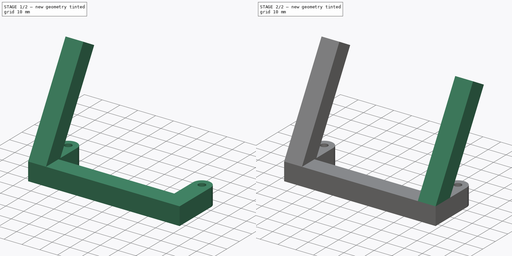
[diagram: build sequence overview — one tinted view per stage of 2, left to right]
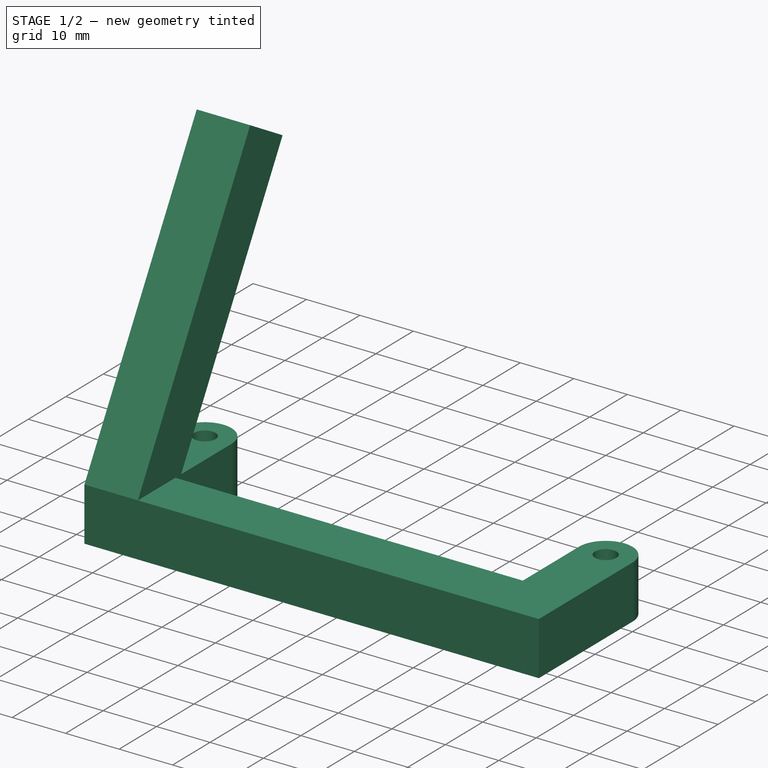
[diagram: stage 1 of 2 — iso view after this stage's code; geometry added in this stage tinted green]
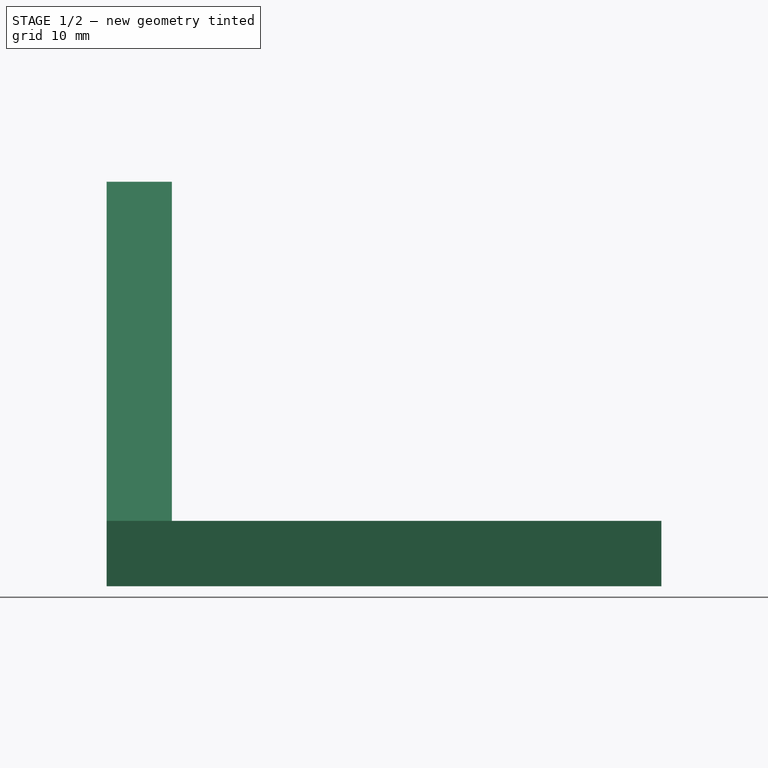
[diagram: stage 1 of 2 — front view after this stage's code; geometry added in this stage tinted green]
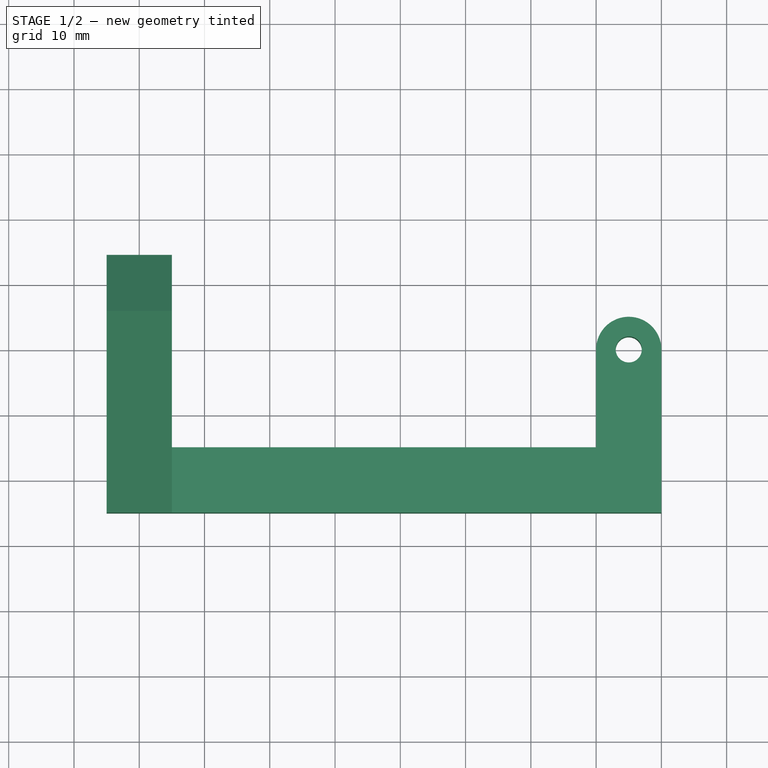
[diagram: stage 1 of 2 — top view after this stage's code; geometry added in this stage tinted green]
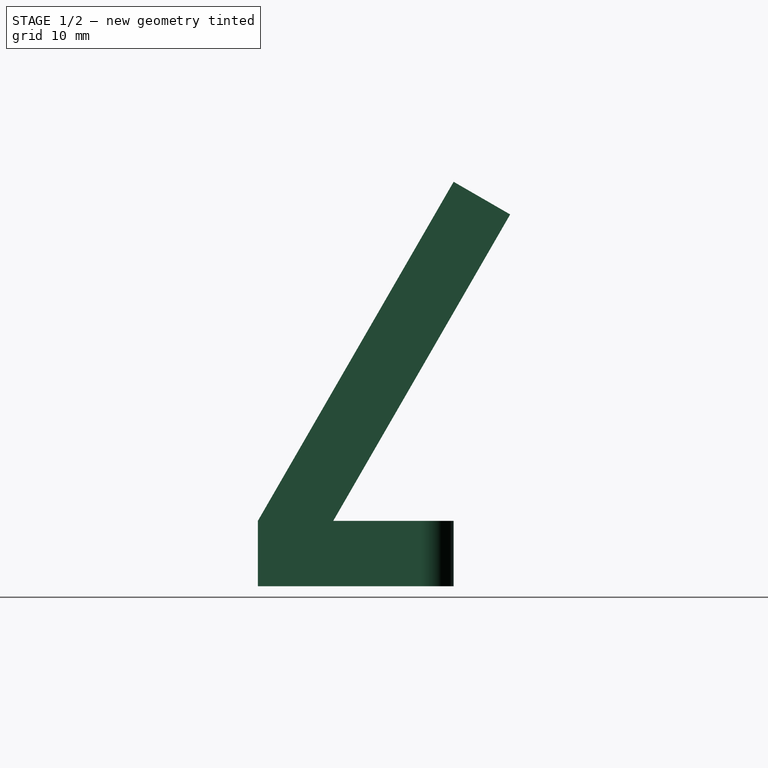
[diagram: stage 1 of 2 — right view after this stage's code; geometry added in this stage tinted green]
FCSTD DOCUMENT  (FreeCAD 0.20R)
Label: small_round_screen_holder
License: All rights reserved
LicenseURL: http://en.wikipedia.org/wiki/All_rights_reserved
objects: Sketcher::SketchObject×3, PartDesign::Pad×3, PartDesign::Body×1
note: 10 computed .brp shape members not serialized (recipe doc carries the construction recipe); baked Part::Feature solids carry a one-line shape summary decoded from their .brp

FEATURE [Sketcher::SketchObject] Sketch
  FullyConstrained = true
  MapMode = 5
  Support = -> [XY_Plane]
  sketch-geometry (12):
    g0: Circle CenterX=0 CenterY=0 CenterZ=0 NormalX=0 NormalY=0 NormalZ=1 AngleXU=0 Radius=2
    g1: LineSegment StartX=0 StartY=0 StartZ=0 EndX=75 EndY=0 EndZ=0
    g2: Circle CenterX=75 CenterY=0 CenterZ=0 NormalX=0 NormalY=0 NormalZ=1 AngleXU=0 Radius=2
    g3: LineSegment StartX=-5 StartY=-25 StartZ=0 EndX=-5 EndY=0 EndZ=0
    g4: LineSegment StartX=5 StartY=0 StartZ=0 EndX=5 EndY=-15 EndZ=0
    g5: ArcOfCircle CenterX=0 CenterY=0 CenterZ=0 NormalX=0 NormalY=0 NormalZ=1 AngleXU=0 Radius=5 StartAngle=0 EndAngle=3.14159
    g6: LineSegment StartX=5 StartY=-15 StartZ=0 EndX=70 EndY=-15 EndZ=0
    g7: LineSegment StartX=70 StartY=-15 StartZ=0 EndX=70 EndY=0 EndZ=0
    g8: LineSegment StartX=80 StartY=0 StartZ=0 EndX=80 EndY=-25 EndZ=0
    g9: ArcOfCircle CenterX=75 CenterY=0 CenterZ=0 NormalX=0 NormalY=0 NormalZ=1 AngleXU=0 Radius=5 StartAngle=0 EndAngle=3.14159
    g10: LineSegment StartX=-5 StartY=-25 StartZ=0 EndX=80 EndY=-25 EndZ=0
    g11: LineSegment StartX=5 StartY=-15 StartZ=0 EndX=5 EndY=-25 EndZ=0
  constraints (34):
    c: Coincident(g0,g-1)
    c: Diameter(g0) = 4
    c: Coincident(g1,g0)
    c: PointOnObject(g1,g-1)
    c: Distance(g1) = 75
    c: Coincident(g2,g1)
    c: Equal(g2,g0)
    c: PointOnObject(g3,g-1)
    c: Vertical(g3)
    c: PointOnObject(g4,g1)
    c: Vertical(g4)
    c: Coincident(g5,g0)
    c: Coincident(g5,g3)
    c: Coincident(g5,g4)
    c: Radius(g5) = 5
    c: Coincident(g6,g4)
    c: Horizontal(g6)
    c: Coincident(g7,g6)
    c: PointOnObject(g7,g1)
    c: Vertical(g7)
    c: PointOnObject(g8,g-1)
    c: Vertical(g8)
    c: Coincident(g9,g2)
    c: Coincident(g9,g7)
    c: Coincident(g9,g8)
    c: Equal(g9,g5)
    c: Equal(g3,g8)
    c: Coincident(g10,g3)
    c: Coincident(g10,g8)
    c: Distance(g3) = 25
    c: Coincident(g11,g4)
    c: PointOnObject(g11,g10)
    c: Vertical(g11)
    c: Distance(g11) = 10
FEATURE [PartDesign::Pad] Pad
  Direction = (0,0,1)
  Length = 10
  Length2 = 10
  Profile = -> Sketch
  ReferenceAxis = -> Sketch [N_Axis]
  Type = 0
FEATURE [Sketcher::SketchObject] Sketch001
  ExternalGeometry = -> [Pad]
  FullyConstrained = true
  MapMode = 5
  Placement = pos=(-5,0,0) rot=(0.57735,-0.57735,-0.57735;2.0944rad)
  Support = -> [Pad]
  sketch-geometry (4):
    g0: LineSegment StartX=25 StartY=10 StartZ=0 EndX=-5 EndY=61.9615 EndZ=0
    g1: LineSegment StartX=-5 StartY=61.9615 StartZ=0 EndX=-13.6603 EndY=56.9615 EndZ=0
    g2: LineSegment StartX=-13.6603 StartY=56.9615 StartZ=0 EndX=13.453 EndY=10 EndZ=0
    g3: LineSegment StartX=13.453 StartY=10 StartZ=0 EndX=25 EndY=10 EndZ=0
  constraints (11):
    c: Coincident(g0,g-4)
    c: Coincident(g1,g0)
    c: Coincident(g2,g1)
    c: PointOnObject(g2,g-4)
    c: Perpendicular(g0,g1)
    c: Parallel(g2,g0)
    c: Equal(g1,g-3)
    c: Angle(g2,g-4) = 1.0472
    c: Distance(g0) = 60
    c: Coincident(g3,g2)
    c: Coincident(g3,g0)
FEATURE [Sketcher::SketchObject] Sketch002
  ExternalGeometry = -> [Sketch001]
  FullyConstrained = true
  MapMode = 5
  Placement = pos=(80,0,0) rot=(0.57735,0.57735,0.57735;2.0944rad)
  Support = -> [Pad]
  sketch-geometry (4):
    g0: LineSegment StartX=-25 StartY=10 StartZ=0 EndX=5 EndY=61.9615 EndZ=0
    g1: LineSegment StartX=5 StartY=61.9615 StartZ=0 EndX=13.6603 EndY=56.9615 EndZ=0
    g2: LineSegment StartX=13.6603 StartY=56.9615 StartZ=0 EndX=-13.453 EndY=10 EndZ=0
    g3: LineSegment StartX=-13.453 StartY=10 StartZ=0 EndX=-25 EndY=10 EndZ=0
  constraints (8):
    c: Coincident(g0,g-3)
    c: Coincident(g0,g-5)
    c: Coincident(g1,g0)
    c: Coincident(g1,g-5)
    c: Coincident(g2,g1)
    c: Coincident(g2,g-4)
    c: Coincident(g3,g2)
    c: Coincident(g3,g0)
FEATURE [PartDesign::Pad] Pad001
  BaseFeature = -> Pad
  Direction = (-1,0,0)
  Length = 10
  Length2 = 10
  Profile = -> Sketch001
  ReferenceAxis = -> Sketch001 [N_Axis]
  Reversed = true
  Type = 0
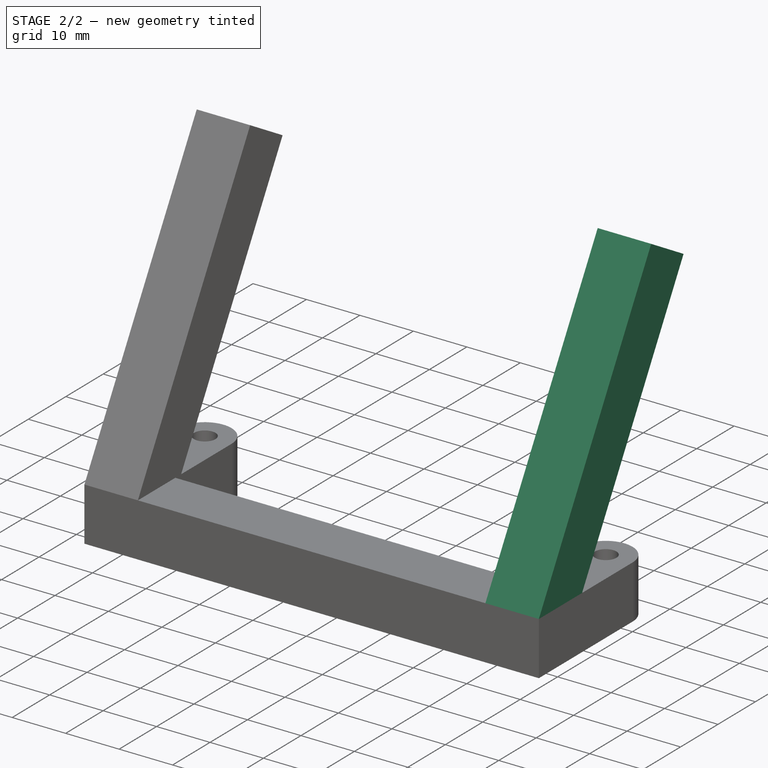
[diagram: stage 2 of 2 — iso view after this stage's code; geometry added in this stage tinted green]
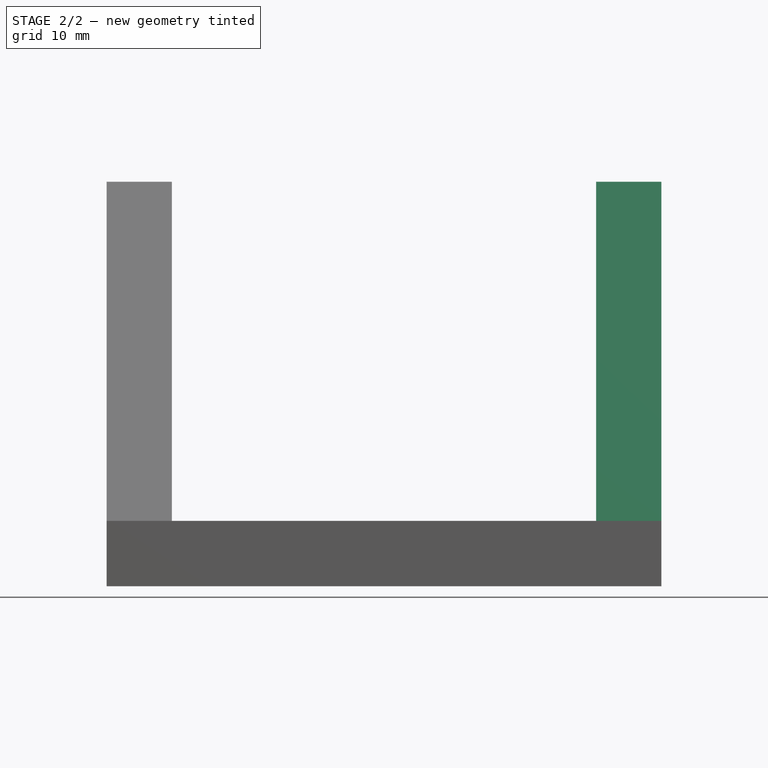
[diagram: stage 2 of 2 — front view after this stage's code; geometry added in this stage tinted green]
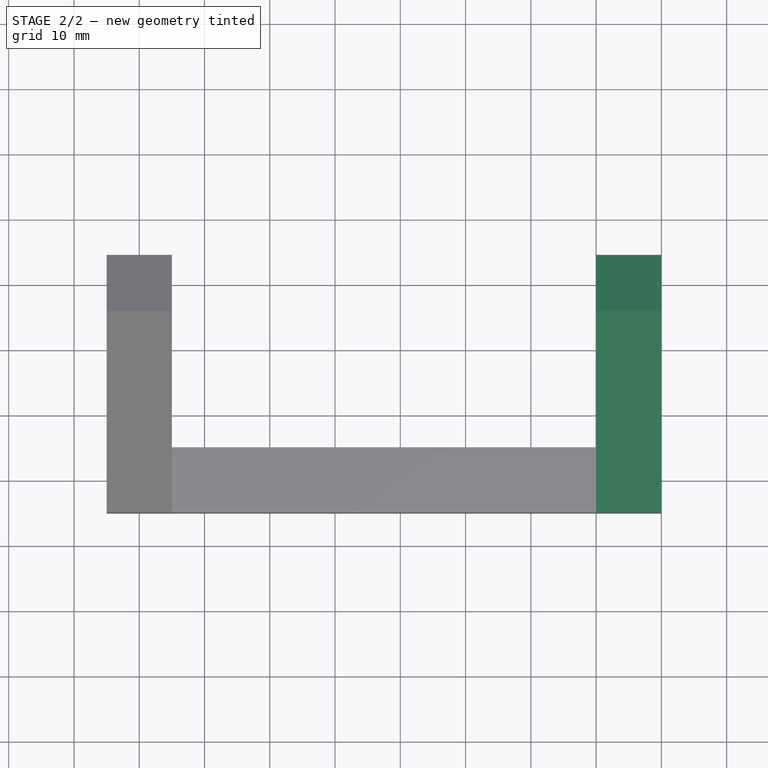
[diagram: stage 2 of 2 — top view after this stage's code; geometry added in this stage tinted green]
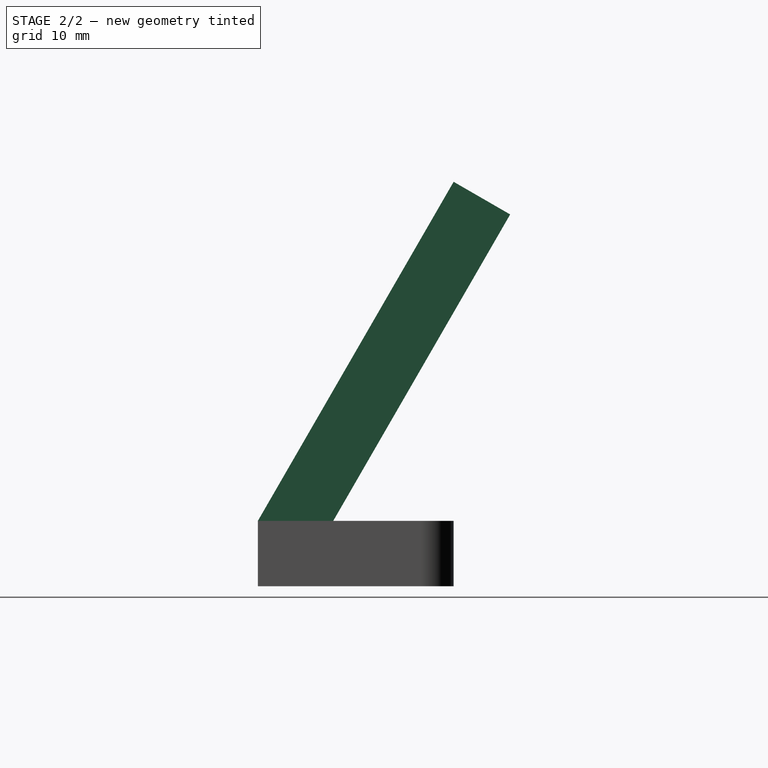
[diagram: stage 2 of 2 — right view after this stage's code; geometry added in this stage tinted green]
FEATURE [PartDesign::Pad] Pad002
  BaseFeature = -> Pad001
  Direction = (1,0,0)
  Length = 10
  Length2 = 10
  Profile = -> Sketch002
  ReferenceAxis = -> Sketch002 [N_Axis]
  Reversed = true
  Type = 0
FEATURE [PartDesign::Body] Body
  Group = -> [Sketch,Pad,Sketch001,Sketch002,Pad001,Pad002]
  Origin = -> Origin
  Tip = -> Pad002
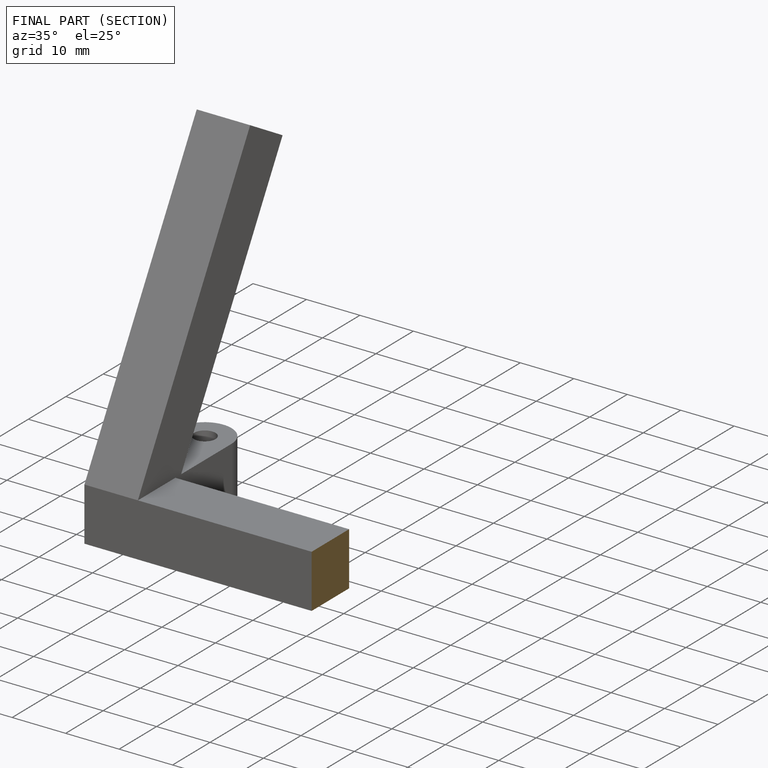
[diagram: finished part — half-section view (interior)]
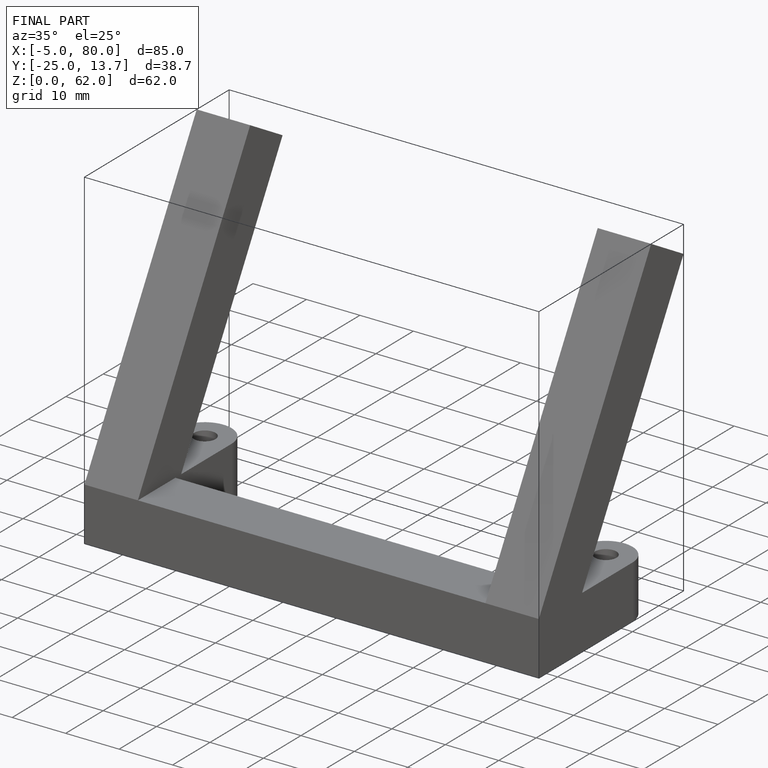
[diagram: finished part — iso view with bounding-box wireframe]
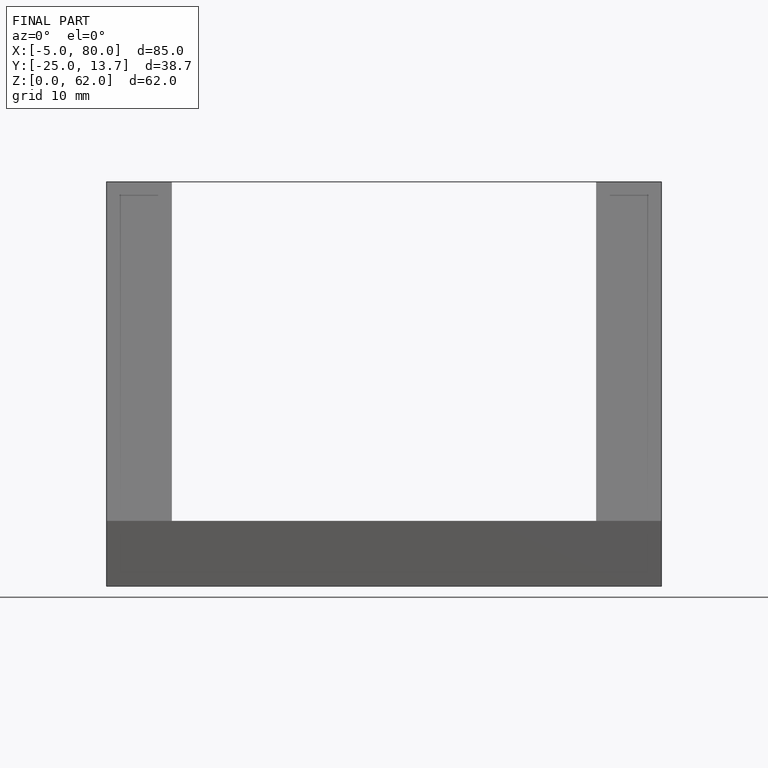
[diagram: finished part — front view with bounding-box wireframe]
